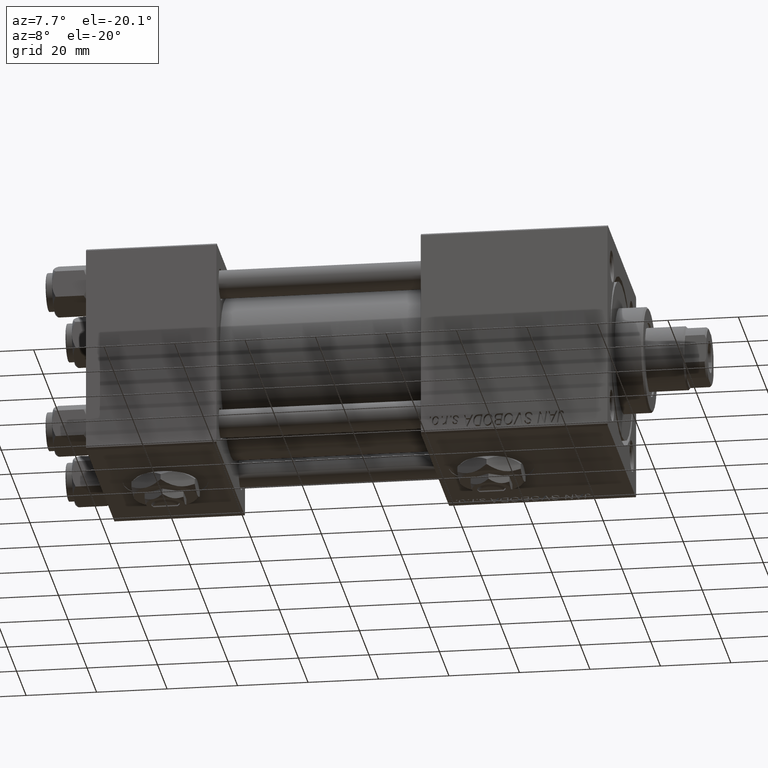
[diagram: clean part render]
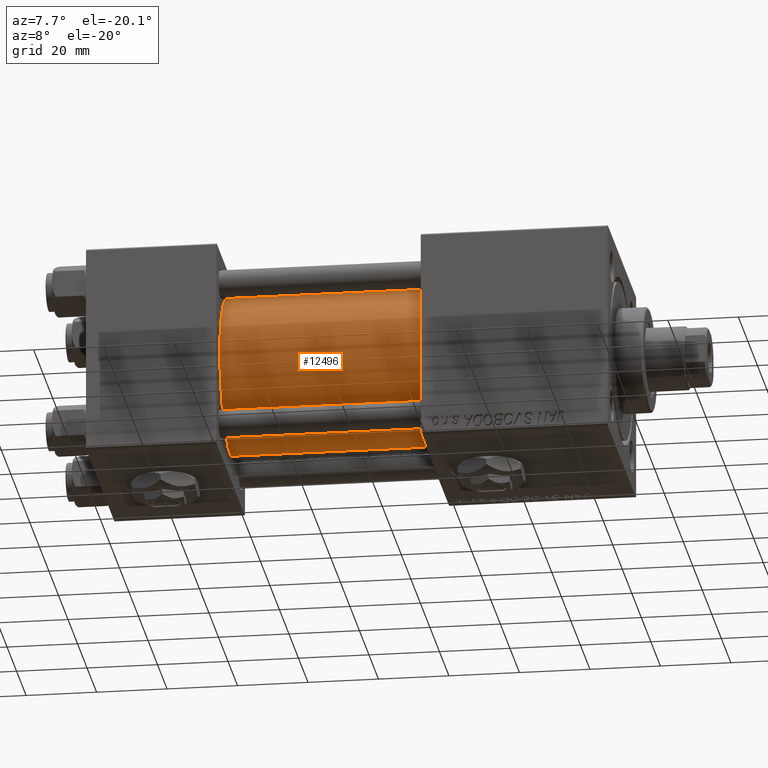
[diagram: same view with one face highlighted and labeled with its STEP entity id]
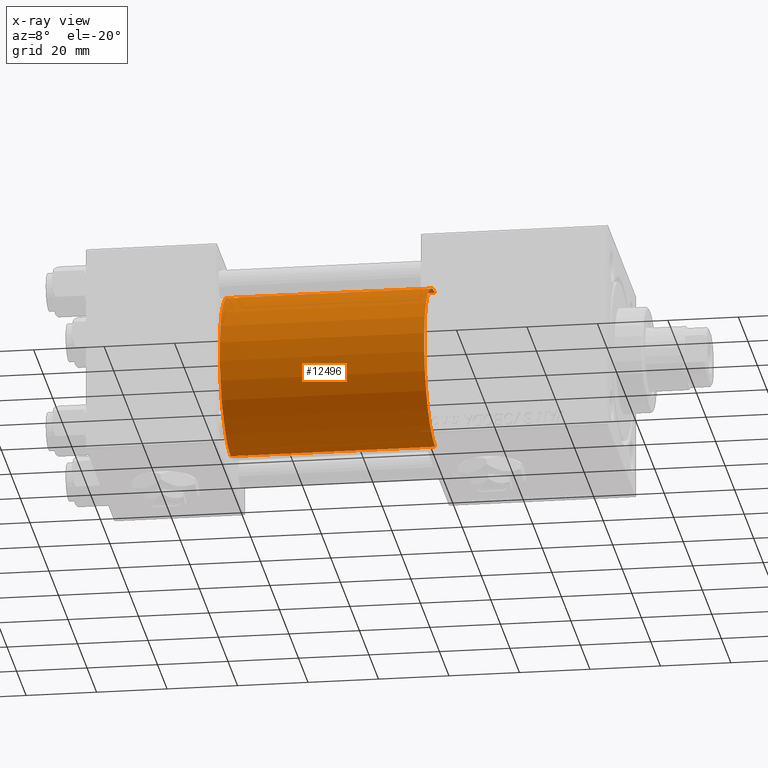
[diagram: x-ray of the same camera — body ghosted, the highlighted face saturated]
A machine part, auxiliary view. The second image highlights one B-rep face of the part: STEP entity #12496.
The next image is the same camera in x-ray: the body ghosted, the highlighted face saturated — about 0% of this face is hidden behind the body in this view.
In plain terms, the highlighted cylindrical surface (partial cylindrical patch) has radius 23 mm, axis along (-1, -0, -0).
Its self-contained STEP definition (entity closure, byte-faithful):
#305 = ORIENTED_EDGE ( 'NONE', *, *, #10782, .F. ) ;
#675 = CARTESIAN_POINT ( 'NONE',  ( 95.00000000000000000, -2.602085213965210642E-15, 23.00000000000000000 ) ) ;
#2215 = VERTEX_POINT ( 'NONE', #39124 ) ;
#4308 = CARTESIAN_POINT ( 'NONE',  ( 95.00000000000000000, -2.602085213965210642E-15, 0.000000000000000000 ) ) ;
#6219 = LINE ( 'NONE', #38457, #21439 ) ;
#10117 = DIRECTION ( 'NONE',  ( 1.000000000000000000, -0.000000000000000000, 0.000000000000000000 ) ) ;
#10782 = EDGE_CURVE ( 'NONE', #2215, #28368, #11986, .T. ) ;
#11986 = CIRCLE ( 'NONE', #49137, 23.00000000000000000 ) ;
#12496 = ADVANCED_FACE ( 'NONE', ( #28684 ), #28438, .T. ) ;
#12629 = CARTESIAN_POINT ( 'NONE',  ( 95.00000000000000000, 2.146024240737012665E-16, -23.00000000000000000 ) ) ;
#15480 = EDGE_CURVE ( 'NONE', #28368, #29988, #6219, .T. ) ;
#16706 = VECTOR ( 'NONE', #32905, 1000.000000000000000 ) ;
#16785 = LINE ( 'NONE', #675, #16706 ) ;
#17780 = EDGE_CURVE ( 'NONE', #42947, #29988, #50179, .T. ) ;
#18094 = DIRECTION ( 'NONE',  ( -1.000000000000000000, -0.000000000000000000, -0.000000000000000000 ) ) ;
#20417 = DIRECTION ( 'NONE',  ( 0.000000000000000000, 0.000000000000000000, -1.000000000000000000 ) ) ;
#21439 = VECTOR ( 'NONE', #18094, 1000.000000000000000 ) ;
#25245 = CARTESIAN_POINT ( 'NONE',  ( 95.00000000000000000, -2.602085213965210642E-15, 0.000000000000000000 ) ) ;
#27398 = AXIS2_PLACEMENT_3D ( 'NONE', #45541, #10117, #50292 ) ;
#28368 = VERTEX_POINT ( 'NONE', #12629 ) ;
#28438 = CYLINDRICAL_SURFACE ( 'NONE', #49991, 23.00000000000000000 ) ;
#28648 = CARTESIAN_POINT ( 'NONE',  ( 37.00000000000000000, 2.146024240737012665E-16, -23.00000000000000000 ) ) ;
#28684 = FACE_OUTER_BOUND ( 'NONE', #41072, .T. ) ;
#29988 = VERTEX_POINT ( 'NONE', #28648 ) ;
#32905 = DIRECTION ( 'NONE',  ( -1.000000000000000000, -0.000000000000000000, -0.000000000000000000 ) ) ;
#33619 = EDGE_CURVE ( 'NONE', #2215, #42947, #16785, .T. ) ;
#38457 = CARTESIAN_POINT ( 'NONE',  ( 95.00000000000000000, 2.146024240737012665E-16, -23.00000000000000000 ) ) ;
#38739 = ORIENTED_EDGE ( 'NONE', *, *, #15480, .F. ) ;
#39124 = CARTESIAN_POINT ( 'NONE',  ( 95.00000000000000000, -2.602085213965210642E-15, 23.00000000000000000 ) ) ;
#40507 = DIRECTION ( 'NONE',  ( 1.000000000000000000, 0.000000000000000000, 0.000000000000000000 ) ) ;
#41072 = EDGE_LOOP ( 'NONE', ( #38739, #305, #43311, #44061 ) ) ;
#41363 = DIRECTION ( 'NONE',  ( -1.000000000000000000, -0.000000000000000000, -0.000000000000000000 ) ) ;
#42792 = CARTESIAN_POINT ( 'NONE',  ( 37.00000000000000000, -2.602085213965210642E-15, 23.00000000000000000 ) ) ;
#42947 = VERTEX_POINT ( 'NONE', #42792 ) ;
#43311 = ORIENTED_EDGE ( 'NONE', *, *, #33619, .T. ) ;
#44061 = ORIENTED_EDGE ( 'NONE', *, *, #17780, .T. ) ;
#44559 = DIRECTION ( 'NONE',  ( 0.000000000000000000, 0.000000000000000000, 1.000000000000000000 ) ) ;
#45541 = CARTESIAN_POINT ( 'NONE',  ( 37.00000000000000000, -2.602085213965210642E-15, 0.000000000000000000 ) ) ;
#49137 = AXIS2_PLACEMENT_3D ( 'NONE', #4308, #40507, #20417 ) ;
#49991 = AXIS2_PLACEMENT_3D ( 'NONE', #25245, #41363, #44559 ) ;
#50179 = CIRCLE ( 'NONE', #27398, 23.00000000000000000 ) ;
#50292 = DIRECTION ( 'NONE',  ( 0.000000000000000000, 0.000000000000000000, 1.000000000000000000 ) ) ;